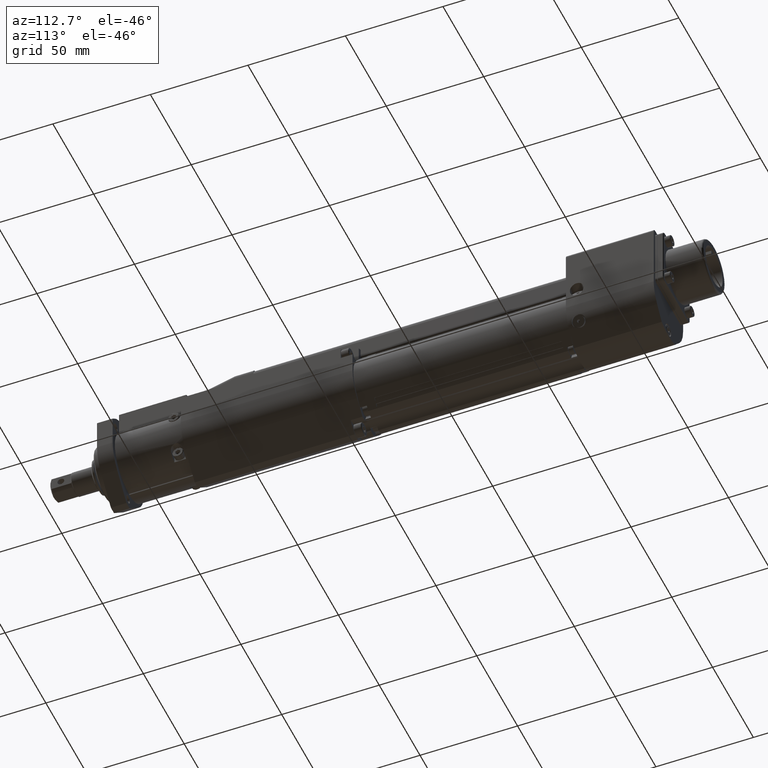
[diagram: clean part render]
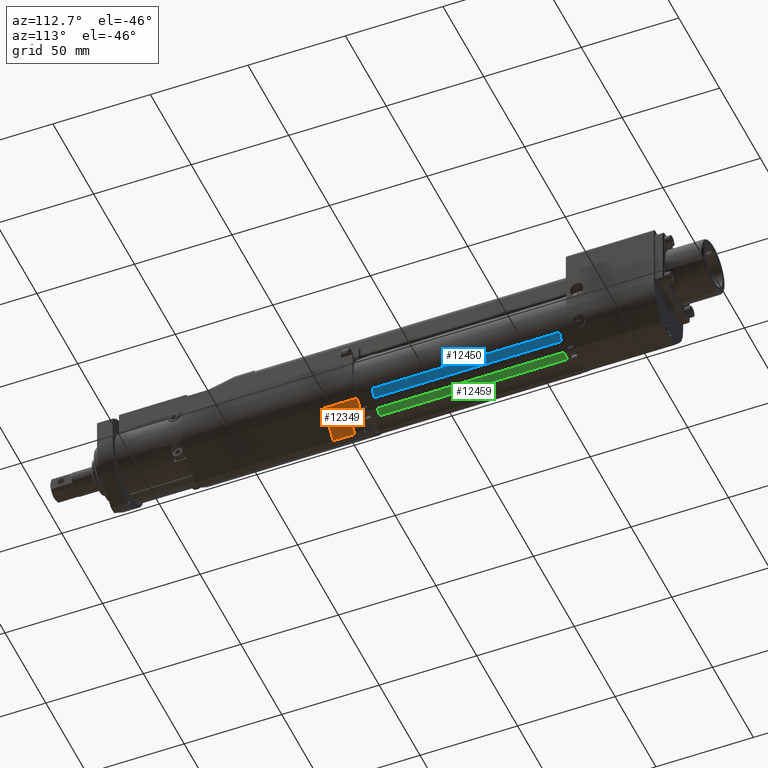
[diagram: same view with three faces highlighted in distinct colors, each labeled with its STEP entity id]
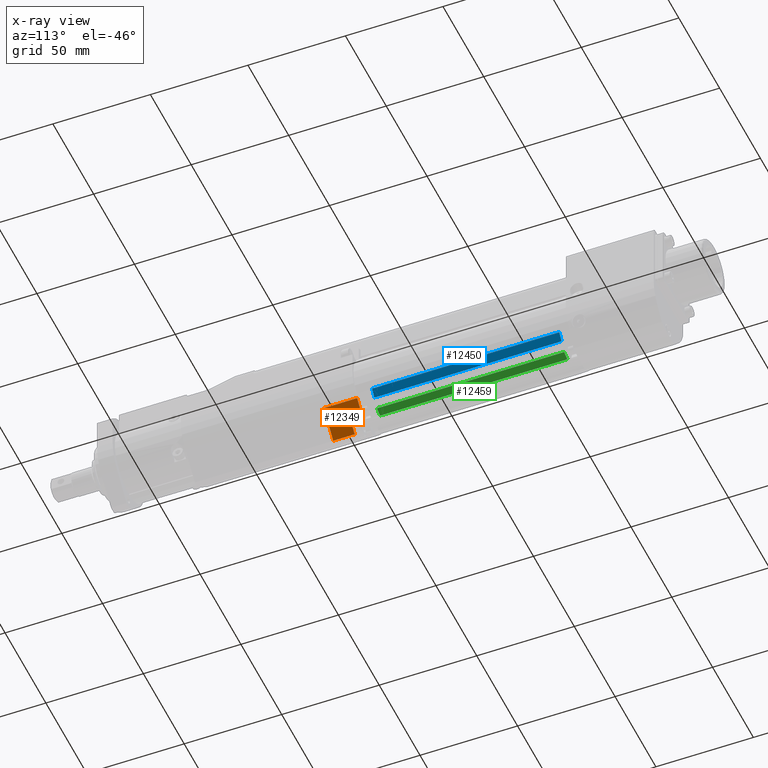
[diagram: x-ray of the same camera — body ghosted, the three highlighted faces saturated]
A machine part, auxiliary view with three faces highlighted in distinct colors.
The next image is the same camera in x-ray (body ghosted, the three faces saturated) — at least one of them is partly hidden behind the body in this view.
Their STEP definitions:

[orange] entity #12349 — the highlighted planar face has unit normal (0.7071, -0, -0.7071).
#743=FACE_OUTER_BOUND('',#1472,.T.);
#1472=EDGE_LOOP('',(#8649,#8650,#8651,#8652,#8653,#8654));
#2934=LINE('',#19840,#3990);
#2957=LINE('',#19911,#4013);
#2958=LINE('',#19913,#4014);
#2959=LINE('',#19914,#4015);
#2960=LINE('',#19916,#4016);
#2961=LINE('',#19917,#4017);
#3990=VECTOR('',#15284,10.);
#4013=VECTOR('',#15355,10.);
#4014=VECTOR('',#15356,10.);
#4015=VECTOR('',#15357,10.);
#4016=VECTOR('',#15358,10.);
#4017=VECTOR('',#15359,10.);
#5158=VERTEX_POINT('',#19833);
#5161=VERTEX_POINT('',#19838);
#5184=VERTEX_POINT('',#19909);
#5185=VERTEX_POINT('',#19910);
#5186=VERTEX_POINT('',#19912);
#5187=VERTEX_POINT('',#19915);
#6457=EDGE_CURVE('',#5161,#5158,#2934,.T.);
#6492=EDGE_CURVE('',#5184,#5185,#2957,.T.);
#6493=EDGE_CURVE('',#5185,#5186,#2958,.T.);
#6494=EDGE_CURVE('',#5186,#5158,#2959,.T.);
#6495=EDGE_CURVE('',#5187,#5161,#2960,.T.);
#6496=EDGE_CURVE('',#5187,#5184,#2961,.T.);
#8649=ORIENTED_EDGE('',*,*,#6492,.T.);
#8650=ORIENTED_EDGE('',*,*,#6493,.T.);
#8651=ORIENTED_EDGE('',*,*,#6494,.T.);
#8652=ORIENTED_EDGE('',*,*,#6457,.F.);
#8653=ORIENTED_EDGE('',*,*,#6495,.F.);
#8654=ORIENTED_EDGE('',*,*,#6496,.T.);
#11140=PLANE('',#13294);
#12349=ADVANCED_FACE('',(#743),#11140,.T.);
#13294=AXIS2_PLACEMENT_3D('',#19908,#15353,#15354);
#15284=DIRECTION('',(0.707106781186546,-3.09427065119591E-16,0.707106781186549));
#15353=DIRECTION('center_axis',(0.707106781186549,-7.11133033024863E-16,
-0.707106781186546));
#15354=DIRECTION('ref_axis',(0.707106781186546,-3.09427065119591E-16,0.707106781186549));
#15355=DIRECTION('',(7.21644966006352E-16,1.,-2.84049013948921E-16));
#15356=DIRECTION('',(0.707106781186546,-3.09427065119591E-16,0.707106781186549));
#15357=DIRECTION('',(-7.21644966006352E-16,-1.,2.84049013948921E-16));
#15358=DIRECTION('',(-7.21644966006352E-16,-1.,2.84049013948921E-16));
#15359=DIRECTION('',(0.707106781186546,-3.09427065119591E-16,0.707106781186549));
#19833=CARTESIAN_POINT('',(13.3061976067204,40.,-13.5626363680114));
#19838=CARTESIAN_POINT('',(1.94457624827953,40.,-24.9242577264523));
#19840=CARTESIAN_POINT('',(8.19357323456645,40.,-18.6752607401653));
#19908=CARTESIAN_POINT('Origin',(1.94457624827954,57.,-24.9242577264523));
#19909=CARTESIAN_POINT('',(6.86883397473194,51.,-19.9999999999999));
#19910=CARTESIAN_POINT('',(6.86883397473195,57.,-19.9999999999999));
#19911=CARTESIAN_POINT('',(6.86883397473194,57.,-19.9999999999999));
#19912=CARTESIAN_POINT('',(13.3061976067204,57.,-13.5626363680114));
#19913=CARTESIAN_POINT('',(1.94457624827954,57.,-24.9242577264523));
#19914=CARTESIAN_POINT('',(13.3061976067204,57.,-13.5626363680114));
#19915=CARTESIAN_POINT('',(1.94457624827953,51.,-24.9242577264523));
#19916=CARTESIAN_POINT('',(1.94457624827954,57.,-24.9242577264523));
#19917=CARTESIAN_POINT('',(2.40276614023505,51.,-24.4660678344968));

[blue] entity #12450 — the highlighted planar face has unit normal (0.788, -0, -0.6157).
#844=FACE_OUTER_BOUND('',#1577,.T.);
#1577=EDGE_LOOP('',(#9151,#9152,#9153,#9154));
#2990=LINE('',#19999,#4046);
#3110=LINE('',#20296,#4166);
#3145=LINE('',#20384,#4201);
#3146=LINE('',#20386,#4202);
#4046=VECTOR('',#15454,10.);
#4166=VECTOR('',#15740,10.);
#4201=VECTOR('',#15845,10.);
#4202=VECTOR('',#15848,10.);
#5203=VERTEX_POINT('',#19987);
#5207=VERTEX_POINT('',#19998);
#5296=VERTEX_POINT('',#20282);
#5301=VERTEX_POINT('',#20294);
#6538=EDGE_CURVE('',#5203,#5207,#2990,.T.);
#6688=EDGE_CURVE('',#5296,#5301,#3110,.T.);
#6731=EDGE_CURVE('',#5296,#5203,#3145,.T.);
#6732=EDGE_CURVE('',#5301,#5207,#3146,.T.);
#9151=ORIENTED_EDGE('',*,*,#6688,.T.);
#9152=ORIENTED_EDGE('',*,*,#6732,.T.);
#9153=ORIENTED_EDGE('',*,*,#6538,.F.);
#9154=ORIENTED_EDGE('',*,*,#6731,.F.);
#11208=PLANE('',#13446);
#12450=ADVANCED_FACE('',(#844),#11208,.T.);
#13446=AXIS2_PLACEMENT_3D('',#20385,#15846,#15847);
#15454=DIRECTION('',(-0.615661475325701,2.1945507012608E-16,-0.788010753606689));
#15740=DIRECTION('',(-0.615661475326099,2.19455070126455E-16,-0.788010753606378));
#15845=DIRECTION('',(7.20020279707599E-16,1.,-2.84049013948918E-16));
#15846=DIRECTION('center_axis',(0.788010753606688,-7.42261758217085E-16,
-0.615661475325701));
#15847=DIRECTION('ref_axis',(-0.615661475325701,2.1945507012608E-16,-0.788010753606688));
#15848=DIRECTION('',(7.20020279707599E-16,1.,-2.84049013948918E-16));
#19987=CARTESIAN_POINT('',(14.1841935649168,161.,-11.0819065558601));
#19998=CARTESIAN_POINT('',(11.4137169258929,161.,-14.6279549471647));
#19999=CARTESIAN_POINT('',(14.1841935649168,161.,-11.0819065558601));
#20282=CARTESIAN_POINT('',(14.1841935647498,64.9999999999999,-11.0819065554722));
#20294=CARTESIAN_POINT('',(11.4137169258929,64.9999999999999,-14.6279549471646));
#20296=CARTESIAN_POINT('',(14.1841935647498,64.9999999999999,-11.0819065554722));
#20384=CARTESIAN_POINT('',(14.1841935649167,64.9999999999999,-11.08190655586));
#20385=CARTESIAN_POINT('Origin',(14.1841935649167,64.9999999999999,-11.08190655586));
#20386=CARTESIAN_POINT('',(11.4137169258929,64.9999999999999,-14.6279549471646));

[green] entity #12459 — the highlighted cylindrical surface (partial cylindrical patch) has radius 20.5 mm, axis along (0, 1, -0).
#337=CYLINDRICAL_SURFACE('',#13455,20.5000000000002);
#853=FACE_OUTER_BOUND('',#1586,.T.);
#1586=EDGE_LOOP('',(#9187,#9188,#9189,#9190));
#2282=CIRCLE('',#13347,20.5000000000002);
#2300=CIRCLE('',#13413,20.4999999999808);
#3154=LINE('',#20402,#4210);
#3155=LINE('',#20404,#4211);
#4210=VECTOR('',#15872,10.);
#4211=VECTOR('',#15875,10.);
#5211=VERTEX_POINT('',#20006);
#5213=VERTEX_POINT('',#20012);
#5271=VERTEX_POINT('',#20200);
#5297=VERTEX_POINT('',#20286);
#6574=EDGE_CURVE('',#5211,#5213,#2282,.T.);
#6692=EDGE_CURVE('',#5297,#5271,#2300,.T.);
#6740=EDGE_CURVE('',#5297,#5211,#3154,.T.);
#6741=EDGE_CURVE('',#5271,#5213,#3155,.T.);
#9187=ORIENTED_EDGE('',*,*,#6692,.T.);
#9188=ORIENTED_EDGE('',*,*,#6741,.T.);
#9189=ORIENTED_EDGE('',*,*,#6574,.F.);
#9190=ORIENTED_EDGE('',*,*,#6740,.F.);
#12459=ADVANCED_FACE('',(#853),#337,.T.);
#13347=AXIS2_PLACEMENT_3D('',#20069,#15516,#15517);
#13413=AXIS2_PLACEMENT_3D('',#20304,#15748,#15749);
#13455=AXIS2_PLACEMENT_3D('',#20403,#15873,#15874);
#15516=DIRECTION('center_axis',(7.20020279707599E-16,1.,-2.84049013948918E-16));
#15517=DIRECTION('ref_axis',(0.397274065157233,-5.46717167818312E-16,-0.917700014794294));
#15748=DIRECTION('center_axis',(7.20020279707599E-16,1.,-2.84049013948918E-16));
#15749=DIRECTION('ref_axis',(0.397274065157233,-5.46717167818313E-16,-0.917700014794293));
#15872=DIRECTION('',(7.20020279707599E-16,1.,-2.84049013948918E-16));
#15873=DIRECTION('center_axis',(7.20020279707599E-16,1.,-2.84049013948918E-16));
#15874=DIRECTION('ref_axis',(0.397274065157233,-5.46717167818312E-16,-0.917700014794294));
#15875=DIRECTION('',(7.20020279707599E-16,1.,-2.84049013948918E-16));
#20006=CARTESIAN_POINT('',(8.14411833572061,161.,-18.8128503032851));
#20012=CARTESIAN_POINT('',(4.24369938323847,161.,-20.0559471365668));
#20069=CARTESIAN_POINT('Origin',(-2.73682116155778E-12,161.,-1.94344101487712E-12));
#20200=CARTESIAN_POINT('',(4.24369938297696,64.9999999999999,-20.055947136189));
#20286=CARTESIAN_POINT('',(8.1441183355555,64.9999999999999,-18.8128503028872));
#20304=CARTESIAN_POINT('Origin',(-1.60142309266189E-10,64.9999999999999,
3.78117609911751E-10));
#20402=CARTESIAN_POINT('',(8.14411833572054,64.9999999999999,-18.8128503032851));
#20403=CARTESIAN_POINT('Origin',(-2.80594310840971E-12,64.9999999999999,
-1.91617230953802E-12));
#20404=CARTESIAN_POINT('',(4.2436993832384,64.9999999999999,-20.0559471365668));